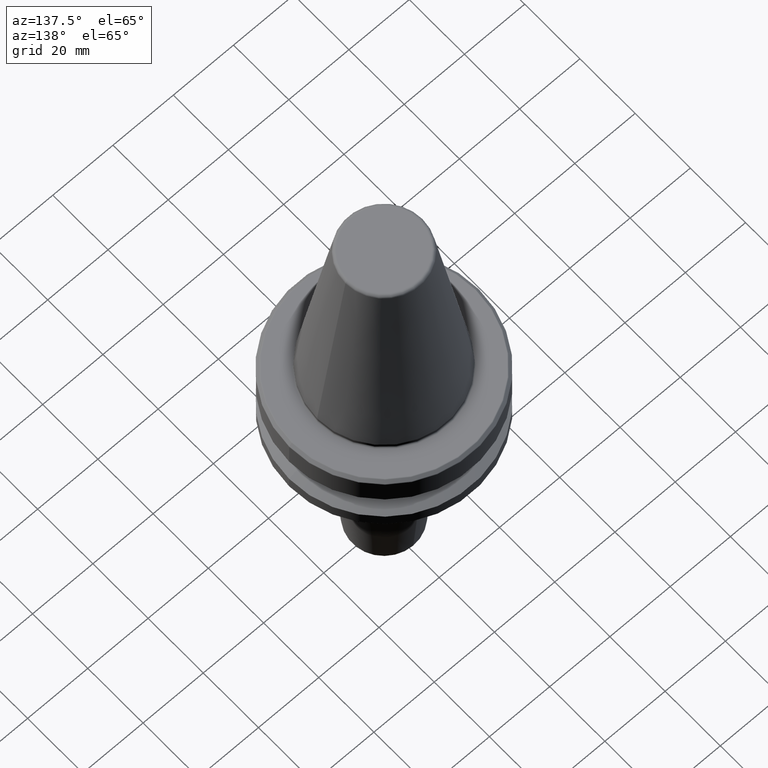
[diagram: clean part render]
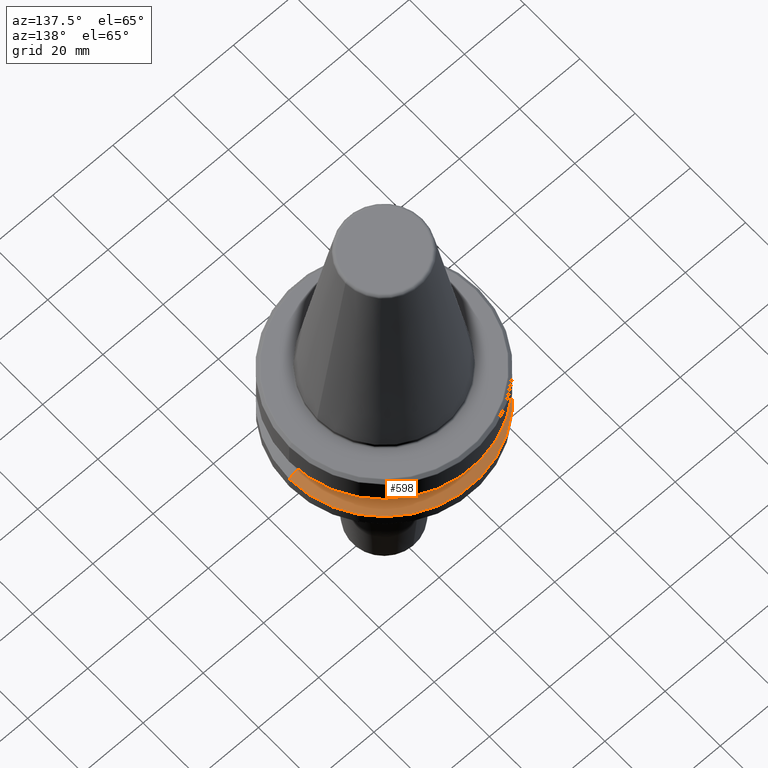
[diagram: same view with one face highlighted and labeled with its STEP entity id]
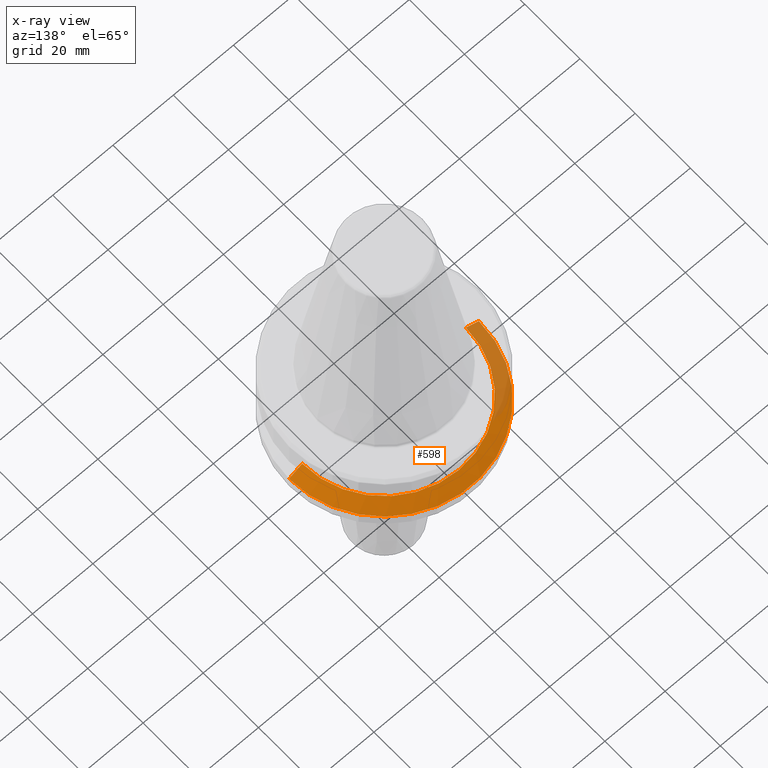
[diagram: x-ray of the same camera — body ghosted, the highlighted face saturated]
A machine part, auxiliary view. The second image highlights one B-rep face of the part: STEP entity #598.
The next image is the same camera in x-ray: the body ghosted, the highlighted face saturated — about 21% of this face is hidden behind the body in this view.
In plain terms, the highlighted conical surface has half-angle 60 deg.
Its self-contained STEP definition (entity closure, byte-faithful):
#63 = CARTESIAN_POINT ( 'NONE',  ( 0.0000000000000000000, 0.0000000000000000000, -21.60014200631675500 ) ) ;
#92 = DIRECTION ( 'NONE',  ( -0.8660254037844403700, 0.0000000000000000000, -0.4999999999999970000 ) ) ;
#174 = DIRECTION ( 'NONE',  ( 1.000000000000000000, 0.0000000000000000000, 0.0000000000000000000 ) ) ;
#186 = CARTESIAN_POINT ( 'NONE',  ( 0.0000000000000000000, 0.0000000000000000000, -19.10000000000000500 ) ) ;
#209 = ORIENTED_EDGE ( 'NONE', *, *, #1203, .F. ) ;
#227 = EDGE_CURVE ( 'NONE', #778, #1132, #1256, .T. ) ;
#249 = VERTEX_POINT ( 'NONE', #1118 ) ;
#273 = DIRECTION ( 'NONE',  ( 0.0000000000000000000, 0.0000000000000000000, -1.000000000000000000 ) ) ;
#276 = CONICAL_SURFACE ( 'NONE', #895, 27.16962701892216700, 1.047197551196601200 ) ;
#302 = LINE ( 'NONE', #555, #793 ) ;
#341 = CARTESIAN_POINT ( 'NONE',  ( 31.50000000000000000, 0.0000000000000000000, -21.60014200631675500 ) ) ;
#363 = CARTESIAN_POINT ( 'NONE',  ( 0.0000000000000000000, 0.0000000000000000000, -19.10000000000000500 ) ) ;
#376 = FACE_OUTER_BOUND ( 'NONE', #904, .T. ) ;
#388 = VERTEX_POINT ( 'NONE', #341 ) ;
#390 = ORIENTED_EDGE ( 'NONE', *, *, #227, .F. ) ;
#417 = DIRECTION ( 'NONE',  ( -0.0000000000000000000, -0.0000000000000000000, 1.000000000000000000 ) ) ;
#512 = EDGE_CURVE ( 'NONE', #778, #388, #302, .T. ) ;
#555 = CARTESIAN_POINT ( 'NONE',  ( 27.16962701892216700, 3.327319676275047600E-015, -19.10000000000000500 ) ) ;
#598 = ADVANCED_FACE ( 'NONE', ( #376 ), #276, .T. ) ;
#639 = ORIENTED_EDGE ( 'NONE', *, *, #512, .T. ) ;
#668 = DIRECTION ( 'NONE',  ( -1.000000000000000000, 0.0000000000000000000, 0.0000000000000000000 ) ) ;
#722 = AXIS2_PLACEMENT_3D ( 'NONE', #363, #417, #914 ) ;
#758 = DIRECTION ( 'NONE',  ( -0.0000000000000000000, -0.0000000000000000000, 1.000000000000000000 ) ) ;
#778 = VERTEX_POINT ( 'NONE', #1043 ) ;
#793 = VECTOR ( 'NONE', #944, 1000.000000000000000 ) ;
#832 = ORIENTED_EDGE ( 'NONE', *, *, #1071, .T. ) ;
#861 = CARTESIAN_POINT ( 'NONE',  ( -27.16962701892216700, 0.0000000000000000000, -19.10000000000000500 ) ) ;
#872 = CARTESIAN_POINT ( 'NONE',  ( -27.16962701892216700, 0.0000000000000000000, -19.10000000000000500 ) ) ;
#895 = AXIS2_PLACEMENT_3D ( 'NONE', #186, #273, #668 ) ;
#900 = CIRCLE ( 'NONE', #1005, 31.50000000000000000 ) ;
#904 = EDGE_LOOP ( 'NONE', ( #390, #639, #832, #209 ) ) ;
#914 = DIRECTION ( 'NONE',  ( 1.000000000000000000, 0.0000000000000000000, 0.0000000000000000000 ) ) ;
#944 = DIRECTION ( 'NONE',  ( 0.8660254037844403700, 1.060575238724909000E-016, -0.4999999999999970000 ) ) ;
#981 = VECTOR ( 'NONE', #92, 1000.000000000000000 ) ;
#1005 = AXIS2_PLACEMENT_3D ( 'NONE', #63, #758, #174 ) ;
#1039 = LINE ( 'NONE', #872, #981 ) ;
#1043 = CARTESIAN_POINT ( 'NONE',  ( 27.16962701892216700, 3.592478546794605500E-015, -19.10000000000000500 ) ) ;
#1071 = EDGE_CURVE ( 'NONE', #388, #249, #900, .T. ) ;
#1118 = CARTESIAN_POINT ( 'NONE',  ( -31.50000000000000000, 3.857637417314162700E-015, -21.60014200631675500 ) ) ;
#1132 = VERTEX_POINT ( 'NONE', #861 ) ;
#1203 = EDGE_CURVE ( 'NONE', #1132, #249, #1039, .T. ) ;
#1256 = CIRCLE ( 'NONE', #722, 27.16962701892216700 ) ;